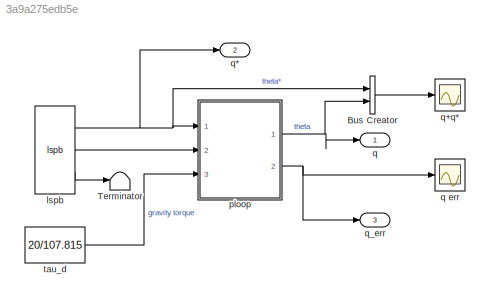
MODEL slx_3a9a275edb5e
KIND model
CONFIG AbsTol = auto
CONFIG EnableMultiTasking = on
CONFIG FixedStep = auto
CONFIG MaxStep = auto
CONFIG MinStep = auto
CONFIG RelTol = 1e-3
CONFIG SampleTimeConstraint = Unconstrained
CONFIG Solver = ode15s
CONFIG SolverName = ode15s
CONFIG StartTime = 0.0
CONFIG StopTime = 1
BLOCK [BusCreator] Bus Creator
  DisplayOption = bar
  InheritFromInputs = on
  Inputs = 2
  Ports = [2, 1]
BLOCK [Terminator] Terminator
BLOCK [Reference] lspb  REF=roblocks/Toolbox/lspb  (lib defined in mdl_2a292b13c81b, mdl_69400f8cfe22, +12 more)
  Ports = [0, 3]
  SourceBlock = roblocks/Toolbox/lspb
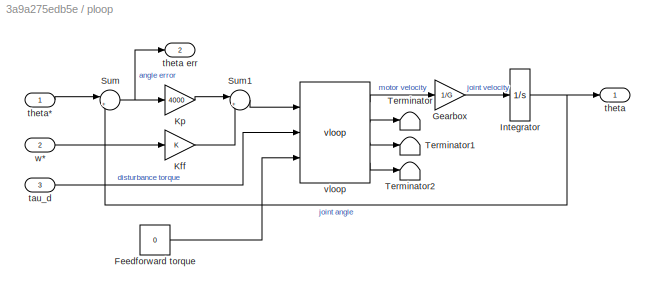
BLOCK [SubSystem] ploop
  Ports = [3, 2]
  RequestExecContextInheritance = off
  Variant = off
BLOCK [Constant] ploop/Feedforward torque
  Value = 0
BLOCK [Gain] ploop/Gearbox
  Gain = 1/G
  OutDataTypeStr = Inherit: Inherit via internal rule
  ParamDataTypeStr = Inherit: Inherit via internal rule
  SaturateOnIntegerOverflow = off
BLOCK [Integrator] ploop/Integrator
  Ports = [1, 1]
BLOCK [Gain] ploop/Kff
  OutDataTypeStr = Inherit: Inherit via internal rule
  ParamDataTypeStr = Inherit: Inherit via internal rule
  SaturateOnIntegerOverflow = off
BLOCK [Gain] ploop/Kp
  Gain = 4000
  OutDataTypeStr = Inherit: Inherit via internal rule
  ParamDataTypeStr = Inherit: Inherit via internal rule
  SaturateOnIntegerOverflow = off
BLOCK [Sum] ploop/Sum
  IconShape = round
  InputSameDT = off
  Inputs = |+-
  OutDataTypeStr = Inherit: Inherit via internal rule
  Ports = [2, 1]
  SaturateOnIntegerOverflow = off
BLOCK [Sum] ploop/Sum1
  IconShape = round
  InputSameDT = off
  Inputs = |++
  OutDataTypeStr = Inherit: Inherit via internal rule
  Ports = [2, 1]
  SaturateOnIntegerOverflow = off
BLOCK [Terminator] ploop/Terminator
BLOCK [Terminator] ploop/Terminator1
BLOCK [Terminator] ploop/Terminator2
BLOCK [Inport] ploop/tau_d
  IconDisplay = Port number
  Port = 3
BLOCK [Outport] ploop/theta
  IconDisplay = Port number
BLOCK [Outport] ploop/theta err
  IconDisplay = Port number
  Port = 2
BLOCK [Inport] ploop/theta*
  IconDisplay = Port number
BLOCK [Reference] ploop/vloop  REF=roblocks/Arm/vloop  (lib defined in mdl_2a292b13c81b, mdl_69400f8cfe22, +12 more)
  Ports = [3, 4]
  SourceBlock = roblocks/Arm/vloop
BLOCK [Inport] ploop/w*
  IconDisplay = Port number
  Port = 2
BLOCK [Outport] q
  IconDisplay = Port number
BLOCK [Scope] q err
  NumInputPorts = 1
  Ports = [1]
  ScopeSpecificationString = Simulink.scopes.TimeScopeBlockCfg('CurrentConfiguration', extmgr.ConfigurationSet(extmgr.Configuration('Core','General UI',true),extmgr.Configuration('Core','Source UI',true),extmgr.Configuration('Sources','WiredSimulink',true,'DataLoggingSaveFormat','StructureWithTime','DataLoggingLimitDataPoints',true,'DataLoggingDecimation','1','DataLoggingDecimateData',true),extmgr.Configuration('Visuals','Tim...<+1780ch>
BLOCK [Outport] q*
  IconDisplay = Port number
  Port = 2
BLOCK [Scope] q+q* 
  NumInputPorts = 1
  Ports = [1]
  ScopeSpecificationString = Simulink.scopes.TimeScopeBlockCfg('CurrentConfiguration', extmgr.ConfigurationSet(extmgr.Configuration('Core','General UI',true),extmgr.Configuration('Core','Source UI',true),extmgr.Configuration('Sources','WiredSimulink',true,'DataLoggingVariableName','ScopeData1','DataLoggingSaveFormat','StructureWithTime','DataLoggingLimitDataPoints',true,'DataLoggingDecimation','1','DataLoggingDecimateData',tr...<+1763ch>
BLOCK [Outport] q_err
  IconDisplay = Port number
  Port = 3
BLOCK [Constant] tau_d
  Value = 20/107.815
LINE Bus Creator:1 -> q+q* :1
NET lspb:1 -> Bus Creator:1, ploop:1, q*:1
LINE lspb:2 -> ploop:2
LINE lspb:3 -> Terminator:1
LINE ploop/Feedforward torque:1 -> ploop/vloop:3
LINE ploop/Gearbox:1 -> ploop/Integrator:1
NET ploop/Integrator:1 -> ploop/Sum:2, ploop/theta:1
LINE ploop/Kff:1 -> ploop/Sum1:2
LINE ploop/Kp:1 -> ploop/Sum1:1
LINE ploop/Sum1:1 -> ploop/vloop:1
NET ploop/Sum:1 -> ploop/Kp:1, ploop/theta err:1
LINE ploop/tau_d:1 -> ploop/vloop:2
LINE ploop/theta*:1 -> ploop/Sum:1
LINE ploop/vloop:1 -> ploop/Gearbox:1
LINE ploop/vloop:2 -> ploop/Terminator:1
LINE ploop/vloop:3 -> ploop/Terminator1:1
LINE ploop/vloop:4 -> ploop/Terminator2:1
LINE ploop/w*:1 -> ploop/Kff:1
NET ploop:1 -> Bus Creator:2, q:1
NET ploop:2 -> q err:1, q_err:1
LINE tau_d:1 -> ploop:3
note: NET lines group one-source signal fan-out (src -> all destinations, sorted); 1:1 wires keep LINE
